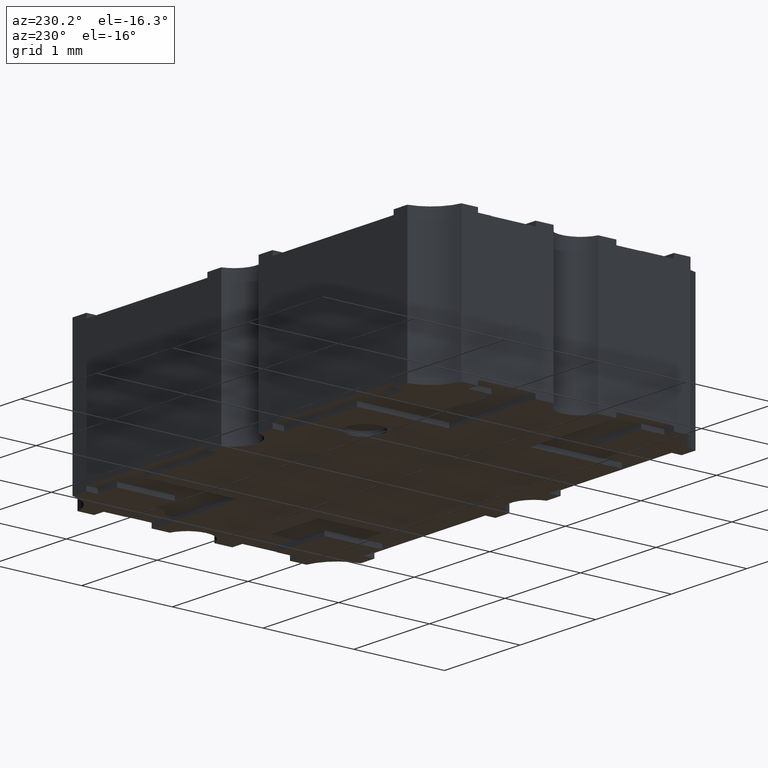
[diagram: clean part render]
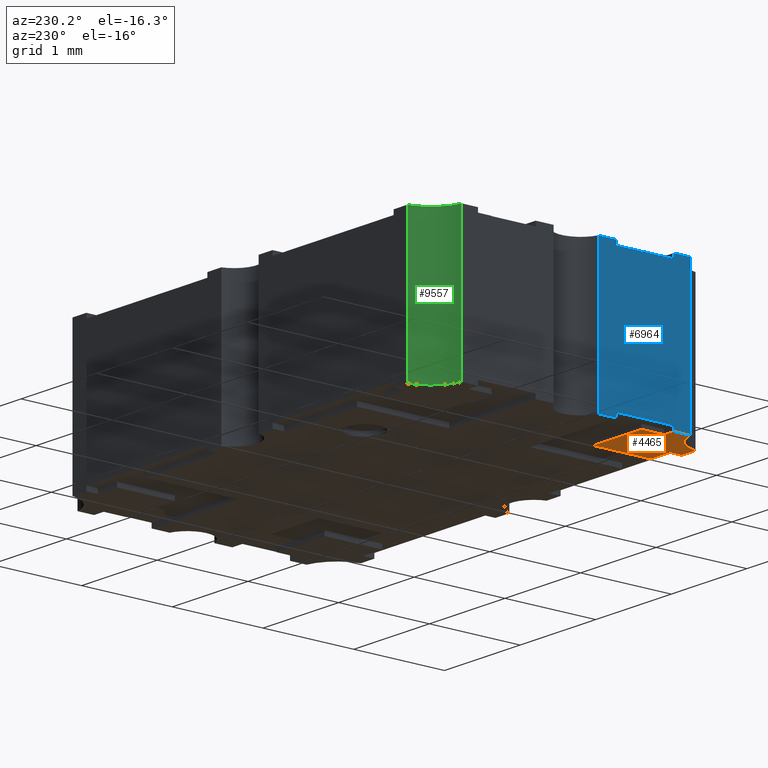
[diagram: same view with three faces highlighted in distinct colors, each labeled with its STEP entity id]
A machine part, auxiliary view with three faces highlighted in distinct colors.
Their STEP definitions:

[orange] entity #4465 — the highlighted planar face has unit normal (0, 0, 1).
#39 = DIRECTION ( 'NONE',  ( -0.000000000000000000, -1.000000000000000000, -0.000000000000000000 ) ) ;
#186 = ORIENTED_EDGE ( 'NONE', *, *, #11698, .T. ) ;
#241 = LINE ( 'NONE', #7969, #8648 ) ;
#297 = CARTESIAN_POINT ( 'NONE',  ( -0.07000000000002495892, -0.05750000000000450584, 0.000000000000000000 ) ) ;
#320 = DIRECTION ( 'NONE',  ( 1.000000000000000000, -0.000000000000000000, -0.000000000000000000 ) ) ;
#568 = CARTESIAN_POINT ( 'NONE',  ( -0.09500000000000220768, -0.04249999999998972655, 0.000000000000000000 ) ) ;
#579 = ORIENTED_EDGE ( 'NONE', *, *, #6205, .T. ) ;
#1335 = DIRECTION ( 'NONE',  ( -0.000000000000000000, -1.000000000000000000, -0.000000000000000000 ) ) ;
#1414 = LINE ( 'NONE', #568, #11854 ) ;
#1916 = VECTOR ( 'NONE', #39, 39.37007874015748143 ) ;
#2295 = LINE ( 'NONE', #4287, #3431 ) ;
#2931 = VERTEX_POINT ( 'NONE', #7406 ) ;
#3196 = CARTESIAN_POINT ( 'NONE',  ( -0.09999999999999176215, -0.04970294145924517709, 0.000000000000000000 ) ) ;
#3305 = VERTEX_POINT ( 'NONE', #6676 ) ;
#3366 = VERTEX_POINT ( 'NONE', #297 ) ;
#3396 = CARTESIAN_POINT ( 'NONE',  ( -0.08000000000001586398, -0.06249999999999773098, 0.000000000000000000 ) ) ;
#3431 = VECTOR ( 'NONE', #1335, 39.37007874015748143 ) ;
#3607 = ORIENTED_EDGE ( 'NONE', *, *, #4374, .T. ) ;
#3768 = VECTOR ( 'NONE', #6838, 39.37007874015748143 ) ;
#4287 = CARTESIAN_POINT ( 'NONE',  ( -0.07000000000002495892, -0.05750000000000450584, 0.000000000000000000 ) ) ;
#4374 = EDGE_CURVE ( 'NONE', #2931, #5909, #241, .T. ) ;
#4411 = CARTESIAN_POINT ( 'NONE',  ( -0.08720294145923923601, -0.06249999999999773098, 0.000000000000000000 ) ) ;
#4465 = ADVANCED_FACE ( 'NONE', ( #7254 ), #5264, .F. ) ;
#4472 = CARTESIAN_POINT ( 'NONE',  ( -0.1024999999999917921, -0.06499999999999771239, 0.000000000000000000 ) ) ;
#4493 = LINE ( 'NONE', #10467, #7753 ) ;
#4857 = EDGE_CURVE ( 'NONE', #11926, #5909, #10489, .T. ) ;
#5074 = VERTEX_POINT ( 'NONE', #12344 ) ;
#5264 = PLANE ( 'NONE',  #7816 ) ;
#5525 = ORIENTED_EDGE ( 'NONE', *, *, #11531, .T. ) ;
#5909 = VERTEX_POINT ( 'NONE', #3396 ) ;
#6039 = DIRECTION ( 'NONE',  ( 1.000000000000000000, 0.000000000000000000, -0.000000000000000000 ) ) ;
#6061 = VECTOR ( 'NONE', #11457, 39.37007874015748143 ) ;
#6088 = CARTESIAN_POINT ( 'NONE',  ( -0.09999999999999167888, -0.04249999999998972655, 0.000000000000000000 ) ) ;
#6130 = VERTEX_POINT ( 'NONE', #6088 ) ;
#6205 = EDGE_CURVE ( 'NONE', #3366, #2931, #7489, .T. ) ;
#6362 = EDGE_CURVE ( 'NONE', #9481, #11926, #9068, .T. ) ;
#6408 = CARTESIAN_POINT ( 'NONE',  ( -0.09500000000000220768, -0.03249999999999882150, 0.000000000000000000 ) ) ;
#6561 = ORIENTED_EDGE ( 'NONE', *, *, #4857, .F. ) ;
#6659 = DIRECTION ( 'NONE',  ( 1.000000000000000000, 0.000000000000000000, 0.000000000000000000 ) ) ;
#6676 = CARTESIAN_POINT ( 'NONE',  ( -0.09500000000000220768, -0.03249999999999882150, 0.000000000000000000 ) ) ;
#6838 = DIRECTION ( 'NONE',  ( -0.000000000000000000, 1.000000000000000000, -0.000000000000000000 ) ) ;
#7055 = LINE ( 'NONE', #3196, #1916 ) ;
#7254 = FACE_OUTER_BOUND ( 'NONE', #12728, .T. ) ;
#7406 = CARTESIAN_POINT ( 'NONE',  ( -0.08000000000001586398, -0.05750000000000450584, 0.000000000000000000 ) ) ;
#7467 = CARTESIAN_POINT ( 'NONE',  ( -0.009682458365489837737, -0.06249999999999771710, 0.000000000000000000 ) ) ;
#7489 = LINE ( 'NONE', #10444, #8866 ) ;
#7753 = VECTOR ( 'NONE', #8421, 39.37007874015748143 ) ;
#7816 = AXIS2_PLACEMENT_3D ( 'NONE', #10209, #8934, #6039 ) ;
#7831 = AXIS2_PLACEMENT_3D ( 'NONE', #4472, #8398, #6659 ) ;
#7955 = CARTESIAN_POINT ( 'NONE',  ( -0.09999999999999176215, -0.04970294145924517709, 0.000000000000000000 ) ) ;
#7969 = CARTESIAN_POINT ( 'NONE',  ( -0.08000000000001586398, -0.06249999999999768241, 0.000000000000000000 ) ) ;
#8181 = ORIENTED_EDGE ( 'NONE', *, *, #6362, .F. ) ;
#8341 = LINE ( 'NONE', #6408, #3768 ) ;
#8398 = DIRECTION ( 'NONE',  ( -0.000000000000000000, -0.000000000000000000, -1.000000000000000000 ) ) ;
#8421 = DIRECTION ( 'NONE',  ( 1.000000000000000000, -0.000000000000000000, -0.000000000000000000 ) ) ;
#8494 = ORIENTED_EDGE ( 'NONE', *, *, #10360, .F. ) ;
#8624 = ORIENTED_EDGE ( 'NONE', *, *, #11183, .T. ) ;
#8648 = VECTOR ( 'NONE', #10020, 39.37007874015748143 ) ;
#8866 = VECTOR ( 'NONE', #9299, 39.37007874015748143 ) ;
#8934 = DIRECTION ( 'NONE',  ( 0.000000000000000000, 0.000000000000000000, 1.000000000000000000 ) ) ;
#9068 = CIRCLE ( 'NONE', #7831, 0.01549999999997452027 ) ;
#9299 = DIRECTION ( 'NONE',  ( -1.000000000000000000, -0.000000000000000000, -0.000000000000000000 ) ) ;
#9481 = VERTEX_POINT ( 'NONE', #7955 ) ;
#10020 = DIRECTION ( 'NONE',  ( -0.000000000000000000, -1.000000000000000000, -0.000000000000000000 ) ) ;
#10209 = CARTESIAN_POINT ( 'NONE',  ( -0.1024999999999917921, 0.06499999999999772626, 0.000000000000000000 ) ) ;
#10360 = EDGE_CURVE ( 'NONE', #6130, #9481, #7055, .T. ) ;
#10444 = CARTESIAN_POINT ( 'NONE',  ( -0.08000000000001586398, -0.05750000000000450584, 0.000000000000000000 ) ) ;
#10467 = CARTESIAN_POINT ( 'NONE',  ( -0.07000000000002495892, -0.03249999999999882150, 0.000000000000000000 ) ) ;
#10489 = LINE ( 'NONE', #7467, #6061 ) ;
#11183 = EDGE_CURVE ( 'NONE', #5074, #3305, #8341, .T. ) ;
#11457 = DIRECTION ( 'NONE',  ( 1.000000000000000000, 1.101260549405577256E-16, -0.000000000000000000 ) ) ;
#11531 = EDGE_CURVE ( 'NONE', #6130, #5074, #1414, .T. ) ;
#11603 = CARTESIAN_POINT ( 'NONE',  ( -0.07000000000002495892, -0.03249999999999882150, 0.000000000000000000 ) ) ;
#11698 = EDGE_CURVE ( 'NONE', #3305, #12270, #4493, .T. ) ;
#11854 = VECTOR ( 'NONE', #320, 39.37007874015748143 ) ;
#11926 = VERTEX_POINT ( 'NONE', #4411 ) ;
#11963 = EDGE_CURVE ( 'NONE', #12270, #3366, #2295, .T. ) ;
#12270 = VERTEX_POINT ( 'NONE', #11603 ) ;
#12344 = CARTESIAN_POINT ( 'NONE',  ( -0.09500000000000220768, -0.04249999999998972655, 0.000000000000000000 ) ) ;
#12680 = ORIENTED_EDGE ( 'NONE', *, *, #11963, .T. ) ;
#12728 = EDGE_LOOP ( 'NONE', ( #5525, #8624, #186, #12680, #579, #3607, #6561, #8181, #8494 ) ) ;

[blue] entity #6964 — the highlighted planar face has unit normal (1, 0, 0).
#39 = DIRECTION ( 'NONE',  ( -0.000000000000000000, -1.000000000000000000, -0.000000000000000000 ) ) ;
#382 = CARTESIAN_POINT ( 'NONE',  ( -0.09999999999999167888, -0.04249999999998974737, 0.05999999999999999084 ) ) ;
#385 = EDGE_CURVE ( 'NONE', #9393, #9481, #10577, .T. ) ;
#452 = CARTESIAN_POINT ( 'NONE',  ( -0.09999999999999174827, -0.009682458365518530063, 0.06199999999999999262 ) ) ;
#638 = CARTESIAN_POINT ( 'NONE',  ( -0.09999999999999167888, -0.04249999999998972655, 0.002000000000000000042 ) ) ;
#758 = CARTESIAN_POINT ( 'NONE',  ( -0.09999999999999174827, -0.04970294145924519097, 0.06199999999999999262 ) ) ;
#781 = PLANE ( 'NONE',  #7477 ) ;
#821 = DIRECTION ( 'NONE',  ( -0.000000000000000000, -0.000000000000000000, 1.000000000000000000 ) ) ;
#1081 = VERTEX_POINT ( 'NONE', #3585 ) ;
#1103 = ORIENTED_EDGE ( 'NONE', *, *, #6565, .T. ) ;
#1368 = VECTOR ( 'NONE', #5066, 39.37007874015748143 ) ;
#1523 = DIRECTION ( 'NONE',  ( 0.000000000000000000, 1.000000000000000000, 0.000000000000000000 ) ) ;
#1528 = EDGE_LOOP ( 'NONE', ( #10854, #1103, #3216, #7395, #11864, #6011, #10807, #11063, #6196, #12485, #3449, #7843 ) ) ;
#1916 = VECTOR ( 'NONE', #39, 39.37007874015748143 ) ;
#2154 = VECTOR ( 'NONE', #1523, 39.37007874015748143 ) ;
#2351 = VECTOR ( 'NONE', #11584, 39.37007874015748143 ) ;
#2489 = CARTESIAN_POINT ( 'NONE',  ( -0.09999999999999176215, -0.009682458365518535268, 0.000000000000000000 ) ) ;
#2688 = VECTOR ( 'NONE', #5941, 39.37007874015748143 ) ;
#2698 = VERTEX_POINT ( 'NONE', #6719 ) ;
#3196 = CARTESIAN_POINT ( 'NONE',  ( -0.09999999999999176215, -0.04970294145924517709, 0.000000000000000000 ) ) ;
#3202 = VERTEX_POINT ( 'NONE', #6419 ) ;
#3213 = DIRECTION ( 'NONE',  ( -0.000000000000000000, -0.000000000000000000, 1.000000000000000000 ) ) ;
#3216 = ORIENTED_EDGE ( 'NONE', *, *, #8498, .T. ) ;
#3230 = VECTOR ( 'NONE', #3213, 39.37007874015748143 ) ;
#3260 = CARTESIAN_POINT ( 'NONE',  ( -0.09999999999999176215, -0.04970294145924517709, 0.000000000000000000 ) ) ;
#3317 = EDGE_CURVE ( 'NONE', #4634, #11378, #9635, .T. ) ;
#3449 = ORIENTED_EDGE ( 'NONE', *, *, #385, .F. ) ;
#3474 = EDGE_CURVE ( 'NONE', #7381, #6130, #10321, .T. ) ;
#3585 = CARTESIAN_POINT ( 'NONE',  ( -0.09999999999999167888, -0.01750000000005513812, 0.05999999999999999084 ) ) ;
#4347 = DIRECTION ( 'NONE',  ( 0.000000000000000000, 0.000000000000000000, -1.000000000000000000 ) ) ;
#4432 = EDGE_CURVE ( 'NONE', #4559, #9769, #10922, .T. ) ;
#4559 = VERTEX_POINT ( 'NONE', #2489 ) ;
#4634 = VERTEX_POINT ( 'NONE', #8477 ) ;
#4636 = FACE_OUTER_BOUND ( 'NONE', #1528, .T. ) ;
#4644 = EDGE_CURVE ( 'NONE', #9393, #2698, #12387, .T. ) ;
#4729 = CARTESIAN_POINT ( 'NONE',  ( -0.09999999999999176215, -0.04970294145924517709, 0.002000000000000000042 ) ) ;
#4909 = CARTESIAN_POINT ( 'NONE',  ( -0.09999999999999167888, -1.280553747030123384E-17, 0.05999999999999999084 ) ) ;
#5041 = EDGE_CURVE ( 'NONE', #11378, #4559, #9519, .T. ) ;
#5066 = DIRECTION ( 'NONE',  ( 0.000000000000000000, 1.000000000000000000, 0.000000000000000000 ) ) ;
#5240 = VECTOR ( 'NONE', #821, 39.37007874015748143 ) ;
#5735 = CARTESIAN_POINT ( 'NONE',  ( -0.09999999999999176215, -0.04970294145924517709, 0.002000000000000000042 ) ) ;
#5941 = DIRECTION ( 'NONE',  ( -0.000000000000000000, -0.000000000000000000, -1.000000000000000000 ) ) ;
#6011 = ORIENTED_EDGE ( 'NONE', *, *, #4432, .T. ) ;
#6088 = CARTESIAN_POINT ( 'NONE',  ( -0.09999999999999167888, -0.04249999999998972655, 0.000000000000000000 ) ) ;
#6130 = VERTEX_POINT ( 'NONE', #6088 ) ;
#6196 = ORIENTED_EDGE ( 'NONE', *, *, #3474, .T. ) ;
#6305 = CARTESIAN_POINT ( 'NONE',  ( -0.09999999999999167888, -0.04249999999998972655, 0.002000000000000000042 ) ) ;
#6419 = CARTESIAN_POINT ( 'NONE',  ( -0.09999999999999167888, -0.04249999999998974737, 0.05999999999999999084 ) ) ;
#6432 = DIRECTION ( 'NONE',  ( -0.000000000000000000, -0.000000000000000000, -1.000000000000000000 ) ) ;
#6476 = CARTESIAN_POINT ( 'NONE',  ( -0.09999999999999167888, -0.01750000000005513812, 0.05999999999999999084 ) ) ;
#6554 = LINE ( 'NONE', #638, #10565 ) ;
#6565 = EDGE_CURVE ( 'NONE', #3202, #1081, #11598, .T. ) ;
#6687 = DIRECTION ( 'NONE',  ( -0.000000000000000000, -1.000000000000000000, -0.000000000000000000 ) ) ;
#6719 = CARTESIAN_POINT ( 'NONE',  ( -0.09999999999999167888, -0.04249999999998974737, 0.06199999999999999262 ) ) ;
#6964 = ADVANCED_FACE ( 'NONE', ( #4636 ), #781, .F. ) ;
#6994 = EDGE_CURVE ( 'NONE', #11710, #9769, #8753, .T. ) ;
#7001 = DIRECTION ( 'NONE',  ( -0.000000000000000000, -1.000000000000000000, -0.000000000000000000 ) ) ;
#7055 = LINE ( 'NONE', #3196, #1916 ) ;
#7381 = VERTEX_POINT ( 'NONE', #6305 ) ;
#7395 = ORIENTED_EDGE ( 'NONE', *, *, #3317, .T. ) ;
#7477 = AXIS2_PLACEMENT_3D ( 'NONE', #5735, #9776, #9653 ) ;
#7501 = CARTESIAN_POINT ( 'NONE',  ( -0.09999999999999174827, -1.280553747030123384E-17, 0.06199999999999999262 ) ) ;
#7843 = ORIENTED_EDGE ( 'NONE', *, *, #4644, .T. ) ;
#7955 = CARTESIAN_POINT ( 'NONE',  ( -0.09999999999999176215, -0.04970294145924517709, 0.000000000000000000 ) ) ;
#8038 = VECTOR ( 'NONE', #9790, 39.37007874015748143 ) ;
#8066 = CARTESIAN_POINT ( 'NONE',  ( -0.09999999999999167888, -0.01749999999999825306, 0.000000000000000000 ) ) ;
#8309 = EDGE_CURVE ( 'NONE', #11710, #7381, #6554, .T. ) ;
#8477 = CARTESIAN_POINT ( 'NONE',  ( -0.09999999999999167888, -0.01750000000005513812, 0.06199999999999999262 ) ) ;
#8498 = EDGE_CURVE ( 'NONE', #1081, #4634, #12385, .T. ) ;
#8689 = CARTESIAN_POINT ( 'NONE',  ( -0.09999999999999167888, -0.01749999999999825306, 0.002000000000000000042 ) ) ;
#8753 = LINE ( 'NONE', #8689, #2351 ) ;
#9050 = CARTESIAN_POINT ( 'NONE',  ( -0.09999999999999174827, -1.280553747030123384E-17, 0.06199999999999999262 ) ) ;
#9328 = CARTESIAN_POINT ( 'NONE',  ( -0.09999999999999176215, -0.009682458365518535268, 0.002000000000000000042 ) ) ;
#9393 = VERTEX_POINT ( 'NONE', #758 ) ;
#9462 = VECTOR ( 'NONE', #7001, 39.37007874015748143 ) ;
#9481 = VERTEX_POINT ( 'NONE', #7955 ) ;
#9519 = LINE ( 'NONE', #9328, #9960 ) ;
#9635 = LINE ( 'NONE', #9050, #1368 ) ;
#9653 = DIRECTION ( 'NONE',  ( 0.000000000000000000, 0.000000000000000000, -1.000000000000000000 ) ) ;
#9769 = VERTEX_POINT ( 'NONE', #8066 ) ;
#9776 = DIRECTION ( 'NONE',  ( 1.000000000000000000, 0.000000000000000000, 0.000000000000000000 ) ) ;
#9790 = DIRECTION ( 'NONE',  ( 0.000000000000000000, 1.000000000000000000, 0.000000000000000000 ) ) ;
#9960 = VECTOR ( 'NONE', #6432, 39.37007874015748143 ) ;
#9989 = VECTOR ( 'NONE', #4347, 39.37007874015748143 ) ;
#10321 = LINE ( 'NONE', #11347, #9989 ) ;
#10360 = EDGE_CURVE ( 'NONE', #6130, #9481, #7055, .T. ) ;
#10565 = VECTOR ( 'NONE', #6687, 39.37007874015748143 ) ;
#10577 = LINE ( 'NONE', #4729, #2688 ) ;
#10807 = ORIENTED_EDGE ( 'NONE', *, *, #6994, .F. ) ;
#10854 = ORIENTED_EDGE ( 'NONE', *, *, #11535, .F. ) ;
#10922 = LINE ( 'NONE', #3260, #9462 ) ;
#11063 = ORIENTED_EDGE ( 'NONE', *, *, #8309, .T. ) ;
#11251 = LINE ( 'NONE', #382, #3230 ) ;
#11347 = CARTESIAN_POINT ( 'NONE',  ( -0.09999999999999167888, -0.04249999999998972655, 0.002000000000000000042 ) ) ;
#11378 = VERTEX_POINT ( 'NONE', #452 ) ;
#11535 = EDGE_CURVE ( 'NONE', #3202, #2698, #11251, .T. ) ;
#11584 = DIRECTION ( 'NONE',  ( 0.000000000000000000, 0.000000000000000000, -1.000000000000000000 ) ) ;
#11598 = LINE ( 'NONE', #4909, #8038 ) ;
#11710 = VERTEX_POINT ( 'NONE', #12333 ) ;
#11864 = ORIENTED_EDGE ( 'NONE', *, *, #5041, .T. ) ;
#12333 = CARTESIAN_POINT ( 'NONE',  ( -0.09999999999999167888, -0.01749999999999825306, 0.002000000000000000042 ) ) ;
#12385 = LINE ( 'NONE', #6476, #5240 ) ;
#12387 = LINE ( 'NONE', #7501, #2154 ) ;
#12485 = ORIENTED_EDGE ( 'NONE', *, *, #10360, .T. ) ;

[green] entity #9557 — the highlighted cylindrical surface (partial cylindrical patch) has radius 0.3937 mm, axis along (-0, -0, -1).
#250 = DIRECTION ( 'NONE',  ( 1.000000000000000000, 0.000000000000000000, 0.000000000000000000 ) ) ;
#540 = CARTESIAN_POINT ( 'NONE',  ( -0.1024999999999917921, 0.06499999999999772626, 0.002000000000000000042 ) ) ;
#718 = EDGE_CURVE ( 'NONE', #5102, #5731, #11396, .T. ) ;
#1609 = EDGE_CURVE ( 'NONE', #5102, #10314, #5963, .T. ) ;
#2120 = DIRECTION ( 'NONE',  ( -0.000000000000000000, -0.000000000000000000, -1.000000000000000000 ) ) ;
#2132 = LINE ( 'NONE', #10231, #10153 ) ;
#2225 = FACE_OUTER_BOUND ( 'NONE', #7126, .T. ) ;
#2426 = DIRECTION ( 'NONE',  ( 0.000000000000000000, 0.000000000000000000, 1.000000000000000000 ) ) ;
#3983 = VERTEX_POINT ( 'NONE', #12157 ) ;
#3990 = AXIS2_PLACEMENT_3D ( 'NONE', #6110, #2120, #250 ) ;
#3998 = ORIENTED_EDGE ( 'NONE', *, *, #718, .F. ) ;
#4518 = DIRECTION ( 'NONE',  ( -0.000000000000000000, -0.000000000000000000, -1.000000000000000000 ) ) ;
#4789 = ORIENTED_EDGE ( 'NONE', *, *, #6816, .T. ) ;
#5102 = VERTEX_POINT ( 'NONE', #12475 ) ;
#5314 = DIRECTION ( 'NONE',  ( -0.000000000000000000, -0.000000000000000000, -1.000000000000000000 ) ) ;
#5731 = VERTEX_POINT ( 'NONE', #8443 ) ;
#5963 = CIRCLE ( 'NONE', #6581, 0.01549999999997453762 ) ;
#6110 = CARTESIAN_POINT ( 'NONE',  ( -0.1024999999999917921, 0.06499999999999772626, 0.000000000000000000 ) ) ;
#6149 = CYLINDRICAL_SURFACE ( 'NONE', #7291, 0.01549999999997453762 ) ;
#6276 = ORIENTED_EDGE ( 'NONE', *, *, #8236, .T. ) ;
#6339 = DIRECTION ( 'NONE',  ( -1.000000000000000000, 0.000000000000000000, 0.000000000000000000 ) ) ;
#6376 = VECTOR ( 'NONE', #4518, 39.37007874015748143 ) ;
#6436 = DIRECTION ( 'NONE',  ( -0.000000000000000000, -0.000000000000000000, -1.000000000000000000 ) ) ;
#6581 = AXIS2_PLACEMENT_3D ( 'NONE', #11353, #2426, #9429 ) ;
#6816 = EDGE_CURVE ( 'NONE', #10314, #3983, #2132, .T. ) ;
#7126 = EDGE_LOOP ( 'NONE', ( #6276, #3998, #10486, #4789 ) ) ;
#7291 = AXIS2_PLACEMENT_3D ( 'NONE', #540, #5314, #6339 ) ;
#8236 = EDGE_CURVE ( 'NONE', #3983, #5731, #8726, .T. ) ;
#8443 = CARTESIAN_POINT ( 'NONE',  ( -0.09999999999999178990, 0.04970294145924517015, 0.000000000000000000 ) ) ;
#8446 = CARTESIAN_POINT ( 'NONE',  ( -0.09999999999999178990, 0.04970294145924517015, 0.002000000000000000042 ) ) ;
#8726 = CIRCLE ( 'NONE', #3990, 0.01549999999997453762 ) ;
#9429 = DIRECTION ( 'NONE',  ( 1.000000000000000000, 0.000000000000000000, 0.000000000000000000 ) ) ;
#9557 = ADVANCED_FACE ( 'NONE', ( #2225 ), #6149, .F. ) ;
#10153 = VECTOR ( 'NONE', #6436, 39.37007874015748143 ) ;
#10231 = CARTESIAN_POINT ( 'NONE',  ( -0.08720294145923923601, 0.06249999999999771710, 0.002000000000000000042 ) ) ;
#10314 = VERTEX_POINT ( 'NONE', #10525 ) ;
#10486 = ORIENTED_EDGE ( 'NONE', *, *, #1609, .T. ) ;
#10525 = CARTESIAN_POINT ( 'NONE',  ( -0.08720294145923922213, 0.06249999999999771017, 0.06199999999999999262 ) ) ;
#11353 = CARTESIAN_POINT ( 'NONE',  ( -0.1024999999999917921, 0.06499999999999772626, 0.06199999999999999262 ) ) ;
#11396 = LINE ( 'NONE', #8446, #6376 ) ;
#12157 = CARTESIAN_POINT ( 'NONE',  ( -0.08720294145923923601, 0.06249999999999771710, 0.000000000000000000 ) ) ;
#12475 = CARTESIAN_POINT ( 'NONE',  ( -0.09999999999999181766, 0.04970294145924517015, 0.06199999999999999262 ) ) ;